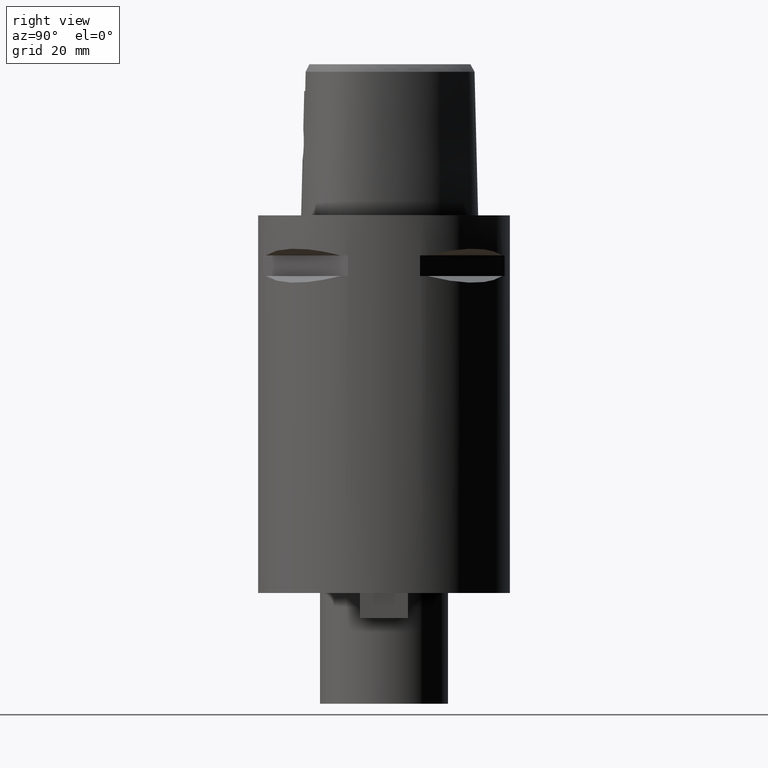
[diagram: clean part render]
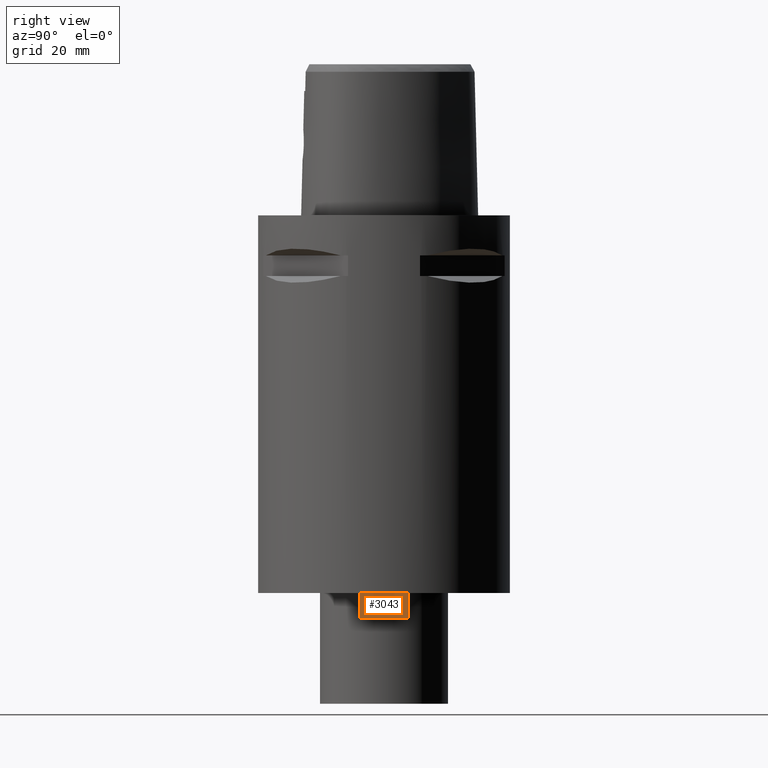
[diagram: same view with one face highlighted and labeled with its STEP entity id]
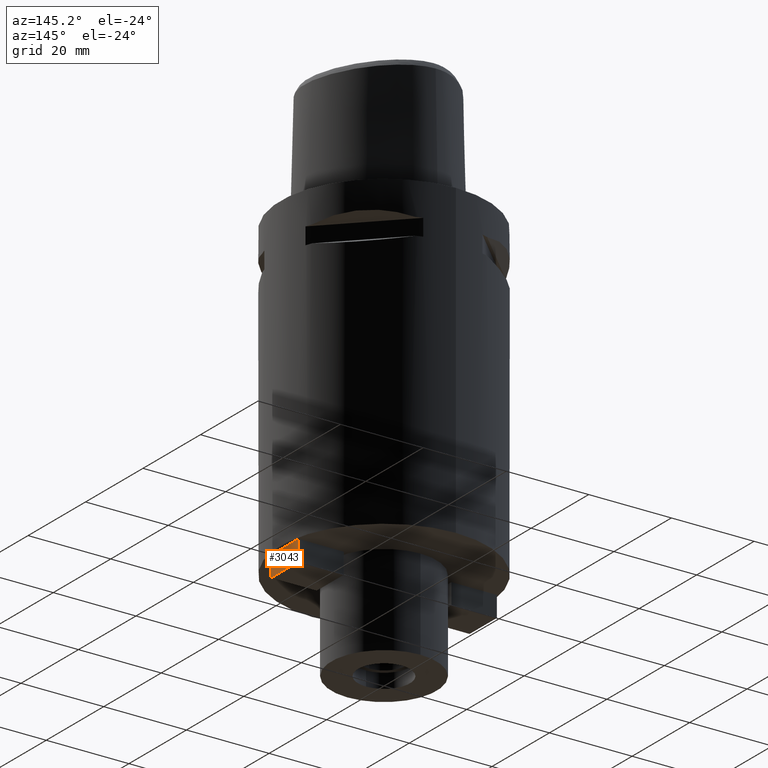
[diagram: same view with one face highlighted and labeled with its STEP entity id]
A machine part, right view. The second image highlights one B-rep face of the part: STEP entity #3043.
A second angle (auxiliary view) of the same face is appended — the face is thin or edge-on in the first view.
In plain terms, the highlighted planar face has unit normal (1, 0, 0).
Its self-contained STEP definition (entity closure, byte-faithful):
#529=DIRECTION('',(0.E0,-1.E0,0.E0));
#530=VECTOR('',#529,9.5E0);
#531=CARTESIAN_POINT('',(2.4E1,4.75E0,-7.5E1));
#532=LINE('',#531,#530);
#1105=DIRECTION('',(0.E0,-1.E0,0.E0));
#1106=VECTOR('',#1105,9.5E0);
#1107=CARTESIAN_POINT('',(2.4E1,4.75E0,-8.E1));
#1108=LINE('',#1107,#1106);
#1112=DIRECTION('',(0.E0,0.E0,1.E0));
#1113=VECTOR('',#1112,5.E0);
#1114=CARTESIAN_POINT('',(2.4E1,-4.75E0,-8.E1));
#1115=LINE('',#1114,#1113);
#1133=DIRECTION('',(0.E0,0.E0,1.E0));
#1134=VECTOR('',#1133,5.E0);
#1135=CARTESIAN_POINT('',(2.4E1,4.75E0,-8.E1));
#1136=LINE('',#1135,#1134);
#1609=CARTESIAN_POINT('',(2.4E1,-4.75E0,-7.5E1));
#1611=VERTEX_POINT('',#1609);
#1614=CARTESIAN_POINT('',(2.4E1,4.75E0,-7.5E1));
#1615=VERTEX_POINT('',#1614);
#1685=CARTESIAN_POINT('',(2.4E1,-4.75E0,-8.E1));
#1686=VERTEX_POINT('',#1685);
#1689=CARTESIAN_POINT('',(2.4E1,4.75E0,-8.E1));
#1690=VERTEX_POINT('',#1689);
#3030=CARTESIAN_POINT('',(2.4E1,-4.75E0,-7.5E1));
#3031=DIRECTION('',(1.E0,0.E0,0.E0));
#3032=DIRECTION('',(0.E0,0.E0,-1.E0));
#3033=AXIS2_PLACEMENT_3D('',#3030,#3031,#3032);
#3034=PLANE('',#3033);
#3035=ORIENTED_EDGE('',*,*,#2459,.F.);
#3037=ORIENTED_EDGE('',*,*,#3036,.F.);
#3039=ORIENTED_EDGE('',*,*,#3038,.T.);
#3040=ORIENTED_EDGE('',*,*,#3021,.T.);
#3041=EDGE_LOOP('',(#3035,#3037,#3039,#3040));
#3042=FACE_OUTER_BOUND('',#3041,.F.);
#2459=EDGE_CURVE('',#1615,#1611,#532,.T.);
#3021=EDGE_CURVE('',#1686,#1611,#1115,.T.);
#3036=EDGE_CURVE('',#1690,#1615,#1136,.T.);
#3038=EDGE_CURVE('',#1690,#1686,#1108,.T.);
#3043=ADVANCED_FACE('',(#3042),#3034,.T.);